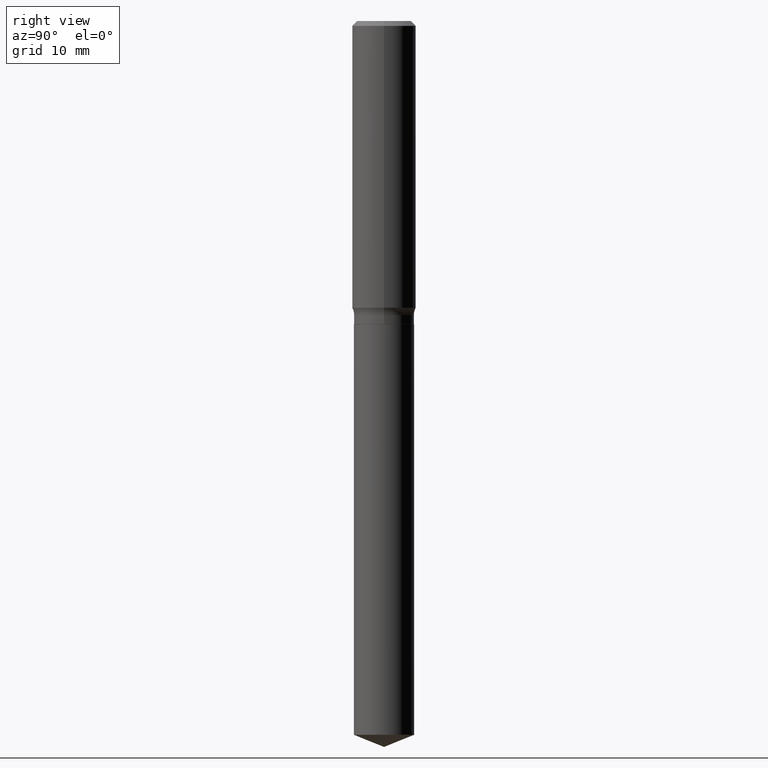
[diagram: clean part render]
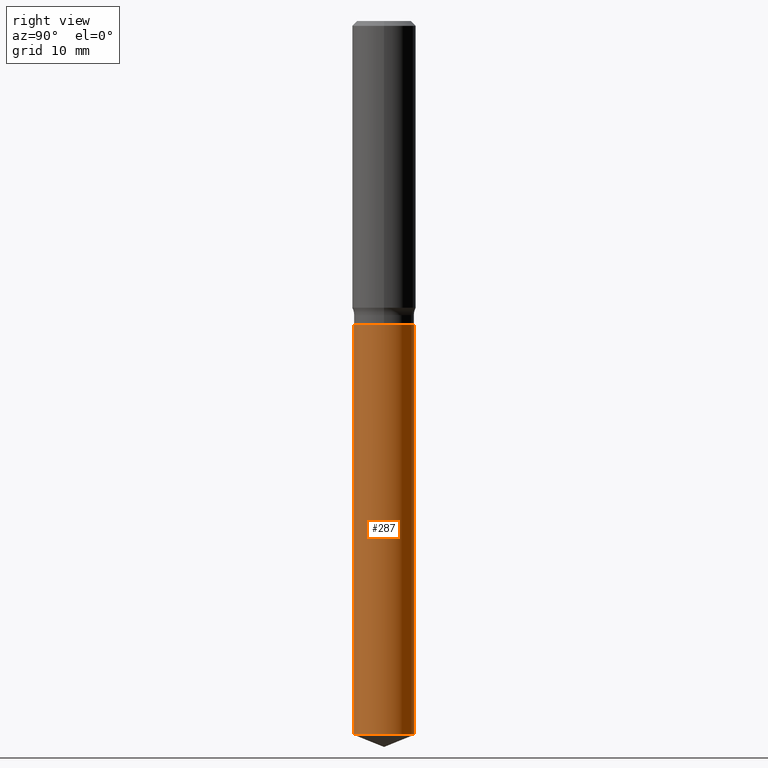
[diagram: same view with one face highlighted and labeled with its STEP entity id]
A machine part, right view. The second image highlights one B-rep face of the part: STEP entity #287.
In plain terms, the highlighted cylindrical surface (edge-blend (fillet) strip) has radius 3.7706 mm, axis along (-0, 0, 1).
Its self-contained STEP definition (entity closure, byte-faithful):
#1 = DIRECTION ( 'NONE',  ( -2.445316723279100245E-29, 3.491699130220610945E-15, 1.000000000000000000 ) ) ;
#23 = EDGE_CURVE ( 'NONE', #430, #179, #397, .T. ) ;
#82 = VERTEX_POINT ( 'NONE', #331 ) ;
#113 = CARTESIAN_POINT ( 'NONE',  ( 8.615132940102252815E-29, -1.230100802129604033E-14, -3.523022306774771018 ) ) ;
#116 = DIRECTION ( 'NONE',  ( -2.445316723279100526E-29, 3.491699130220610945E-15, 1.000000000000000000 ) ) ;
#121 = DIRECTION ( 'NONE',  ( -2.445316723279100245E-29, 3.491699130220610945E-15, 1.000000000000000000 ) ) ;
#127 = CARTESIAN_POINT ( 'NONE',  ( 3.659399521575438742E-29, -5.224652675444883351E-15, -1.496400000000000174 ) ) ;
#132 = ORIENTED_EDGE ( 'NONE', *, *, #263, .F. ) ;
#158 = ORIENTED_EDGE ( 'NONE', *, *, #467, .T. ) ;
#171 = VECTOR ( 'NONE', #254, 39.37007874015748143 ) ;
#179 = VERTEX_POINT ( 'NONE', #440 ) ;
#198 = CARTESIAN_POINT ( 'NONE',  ( 1.054800691235905201E-15, 0.1484499999999947528, -1.496400000000000841 ) ) ;
#207 = LINE ( 'NONE', #198, #334 ) ;
#211 = DIRECTION ( 'NONE',  ( -2.445316723279100245E-29, 3.491699130220610945E-15, 1.000000000000000000 ) ) ;
#227 = CIRCLE ( 'NONE', #280, 0.1484499999999999986 ) ;
#234 = EDGE_CURVE ( 'NONE', #82, #305, #227, .T. ) ;
#254 = DIRECTION ( 'NONE',  ( -2.445316723279100526E-29, 3.491699130220610945E-15, 1.000000000000000000 ) ) ;
#262 = DIRECTION ( 'NONE',  ( -6.982962677686265133E-15, -1.000000000000000000, 3.680495781292372402E-15 ) ) ;
#263 = EDGE_CURVE ( 'NONE', #82, #430, #401, .T. ) ;
#280 = AXIS2_PLACEMENT_3D ( 'NONE', #113, #1, #262 ) ;
#285 = DIRECTION ( 'NONE',  ( -6.982962677686265133E-15, -1.000000000000000000, 3.680495781292372402E-15 ) ) ;
#287 = ADVANCED_FACE ( 'NONE', ( #313 ), #479, .T. ) ;
#305 = VERTEX_POINT ( 'NONE', #457 ) ;
#310 = ORIENTED_EDGE ( 'NONE', *, *, #23, .F. ) ;
#313 = FACE_OUTER_BOUND ( 'NONE', #437, .T. ) ;
#321 = CARTESIAN_POINT ( 'NONE',  ( -1.036620809502489411E-15, -0.1484500000000052167, -1.496399999999999730 ) ) ;
#325 = AXIS2_PLACEMENT_3D ( 'NONE', #329, #211, #285 ) ;
#328 = CARTESIAN_POINT ( 'NONE',  ( -1.036620809502489411E-15, -0.1484500000000052167, -1.496399999999999730 ) ) ;
#329 = CARTESIAN_POINT ( 'NONE',  ( 3.659399521575438742E-29, -5.224652675444883351E-15, -1.496400000000000174 ) ) ;
#331 = CARTESIAN_POINT ( 'NONE',  ( -1.036620809502439910E-15, -0.1484500000000122666, -3.523022306774770573 ) ) ;
#334 = VECTOR ( 'NONE', #116, 39.37007874015748143 ) ;
#396 = AXIS2_PLACEMENT_3D ( 'NONE', #127, #121, #422 ) ;
#397 = CIRCLE ( 'NONE', #396, 0.1484499999999999986 ) ;
#401 = LINE ( 'NONE', #328, #171 ) ;
#405 = ORIENTED_EDGE ( 'NONE', *, *, #234, .T. ) ;
#422 = DIRECTION ( 'NONE',  ( -6.982962677686265133E-15, -1.000000000000000000, 3.680495781292372402E-15 ) ) ;
#430 = VERTEX_POINT ( 'NONE', #321 ) ;
#437 = EDGE_LOOP ( 'NONE', ( #405, #158, #310, #132 ) ) ;
#440 = CARTESIAN_POINT ( 'NONE',  ( 1.054800691235955096E-15, 0.1484499999999947528, -1.496400000000000841 ) ) ;
#457 = CARTESIAN_POINT ( 'NONE',  ( 1.054800691235954505E-15, 0.1484499999999877029, -3.523022306774771906 ) ) ;
#467 = EDGE_CURVE ( 'NONE', #305, #179, #207, .T. ) ;
#479 = CYLINDRICAL_SURFACE ( 'NONE', #325, 0.1484499999999999986 ) ;